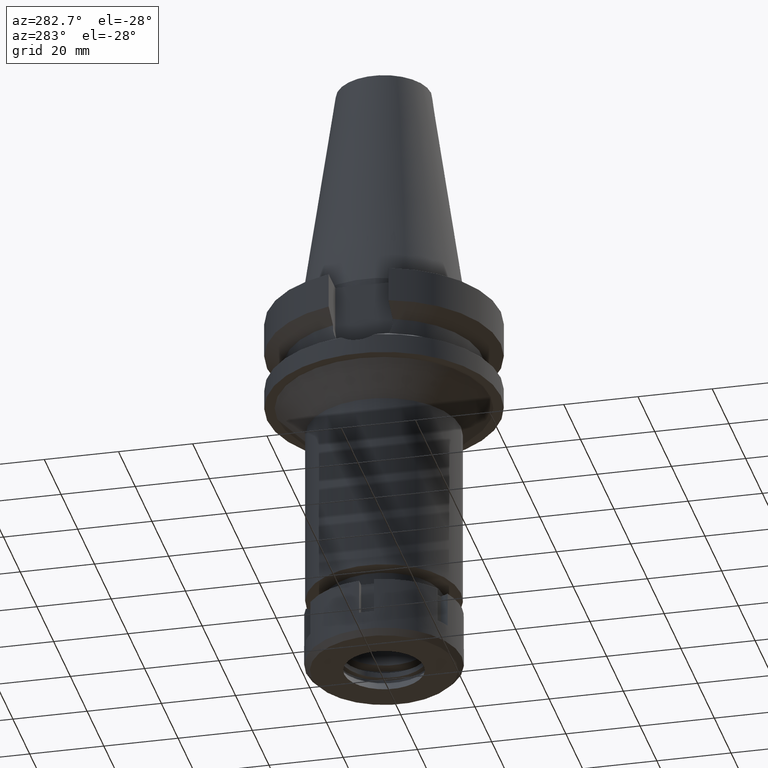
[diagram: clean part render]
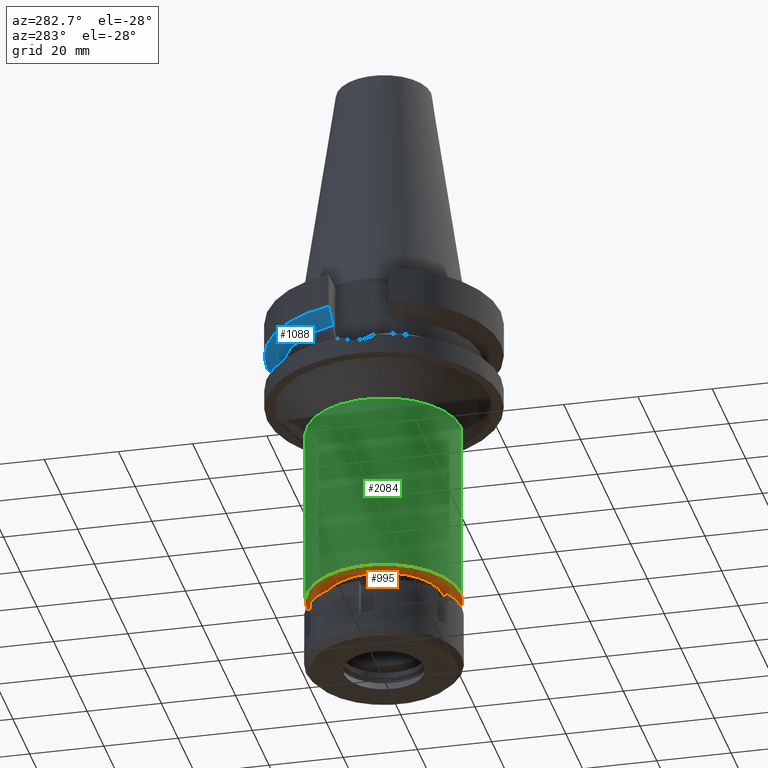
[diagram: same view with three faces highlighted in distinct colors, each labeled with its STEP entity id]
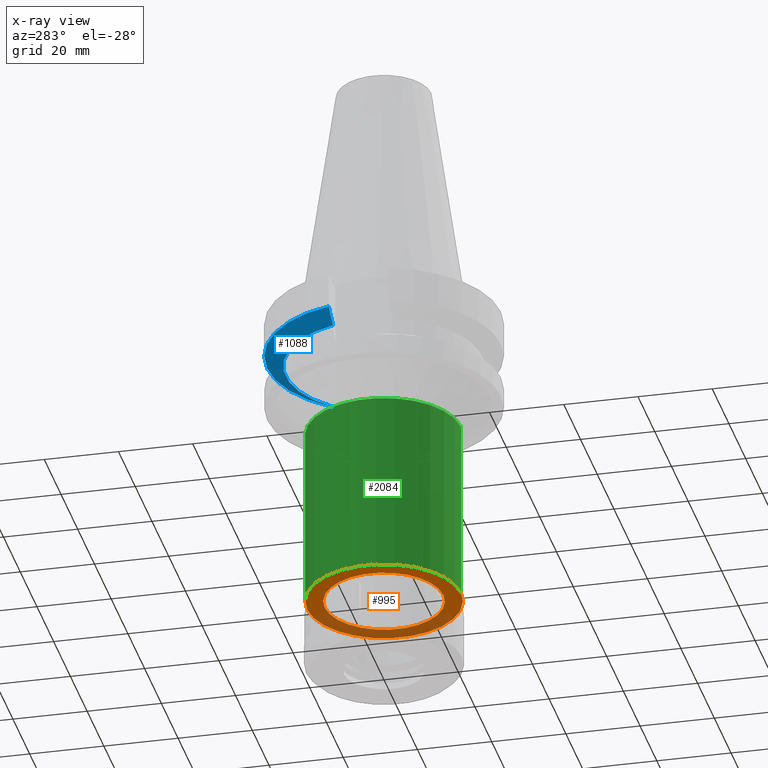
[diagram: x-ray of the same camera — body ghosted, the three highlighted faces saturated]
A machine part, auxiliary view with three faces highlighted in distinct colors.
The next image is the same camera in x-ray (body ghosted, the three faces saturated) — at least one of them is partly hidden behind the body in this view.
Their STEP definitions:

[orange] entity #995 — the highlighted planar face has unit normal (0, 0, -1).
#122 = DIRECTION ( 'NONE',  ( 0.0000000000000000000, 0.0000000000000000000, 1.000000000000000000 ) ) ;
#285 = CARTESIAN_POINT ( 'NONE',  ( 0.0000000000000000000, 2.125007125879999817E-14, -84.50000000000000000 ) ) ;
#357 = AXIS2_PLACEMENT_3D ( 'NONE', #2186, #2995, #3298 ) ;
#480 = CARTESIAN_POINT ( 'NONE',  ( 0.0000000000000000000, 2.125007125879999817E-14, -84.50000000000000000 ) ) ;
#492 = AXIS2_PLACEMENT_3D ( 'NONE', #3011, #3595, #2155 ) ;
#528 = CARTESIAN_POINT ( 'NONE',  ( 0.0000000000000000000, -20.75000000000000000, -84.50000000000000000 ) ) ;
#584 = CARTESIAN_POINT ( 'NONE',  ( 0.0000000000000000000, -16.00000000000000000, -84.50000000000000000 ) ) ;
#592 = CARTESIAN_POINT ( 'NONE',  ( 0.0000000000000000000, 16.00000000000000000, -84.50000000000000000 ) ) ;
#798 = DIRECTION ( 'NONE',  ( 0.0000000000000000000, -1.000000000000000000, 0.0000000000000000000 ) ) ;
#814 = EDGE_CURVE ( 'NONE', #3417, #3115, #997, .T. ) ;
#995 = ADVANCED_FACE ( 'NONE', ( #1064, #3001 ), #3034, .T. ) ;
#997 = CIRCLE ( 'NONE', #1768, 20.75000000000000000 ) ;
#1064 = FACE_OUTER_BOUND ( 'NONE', #1342, .T. ) ;
#1092 = VERTEX_POINT ( 'NONE', #592 ) ;
#1150 = ORIENTED_EDGE ( 'NONE', *, *, #3102, .F. ) ;
#1157 = DIRECTION ( 'NONE',  ( 0.0000000000000000000, 0.0000000000000000000, -1.000000000000000000 ) ) ;
#1172 = DIRECTION ( 'NONE',  ( 0.0000000000000000000, -1.000000000000000000, 0.0000000000000000000 ) ) ;
#1342 = EDGE_LOOP ( 'NONE', ( #1557, #1150 ) ) ;
#1414 = CARTESIAN_POINT ( 'NONE',  ( 0.0000000000000000000, 20.75000000000000000, -84.50000000000000000 ) ) ;
#1557 = ORIENTED_EDGE ( 'NONE', *, *, #814, .F. ) ;
#1650 = AXIS2_PLACEMENT_3D ( 'NONE', #1694, #2790, #798 ) ;
#1694 = CARTESIAN_POINT ( 'NONE',  ( 0.0000000000000000000, 0.0000000000000000000, -84.50000000000000000 ) ) ;
#1768 = AXIS2_PLACEMENT_3D ( 'NONE', #480, #122, #3506 ) ;
#1878 = EDGE_CURVE ( 'NONE', #1092, #2005, #2923, .T. ) ;
#2005 = VERTEX_POINT ( 'NONE', #584 ) ;
#2073 = AXIS2_PLACEMENT_3D ( 'NONE', #285, #1157, #1172 ) ;
#2155 = DIRECTION ( 'NONE',  ( 0.0000000000000000000, -1.000000000000000000, 0.0000000000000000000 ) ) ;
#2186 = CARTESIAN_POINT ( 'NONE',  ( 0.0000000000000000000, 2.125007125879999817E-14, -84.50000000000000000 ) ) ;
#2342 = EDGE_LOOP ( 'NONE', ( #2733, #2803 ) ) ;
#2530 = CIRCLE ( 'NONE', #492, 20.75000000000000000 ) ;
#2733 = ORIENTED_EDGE ( 'NONE', *, *, #1878, .F. ) ;
#2790 = DIRECTION ( 'NONE',  ( 0.0000000000000000000, 0.0000000000000000000, -1.000000000000000000 ) ) ;
#2803 = ORIENTED_EDGE ( 'NONE', *, *, #3395, .F. ) ;
#2923 = CIRCLE ( 'NONE', #357, 16.00000000000000000 ) ;
#2995 = DIRECTION ( 'NONE',  ( 0.0000000000000000000, 0.0000000000000000000, -1.000000000000000000 ) ) ;
#3001 = FACE_BOUND ( 'NONE', #2342, .T. ) ;
#3011 = CARTESIAN_POINT ( 'NONE',  ( 0.0000000000000000000, 2.125007125879999817E-14, -84.50000000000000000 ) ) ;
#3034 = PLANE ( 'NONE',  #1650 ) ;
#3102 = EDGE_CURVE ( 'NONE', #3115, #3417, #2530, .T. ) ;
#3115 = VERTEX_POINT ( 'NONE', #528 ) ;
#3298 = DIRECTION ( 'NONE',  ( 0.0000000000000000000, 1.000000000000000000, 0.0000000000000000000 ) ) ;
#3368 = CIRCLE ( 'NONE', #2073, 16.00000000000000000 ) ;
#3395 = EDGE_CURVE ( 'NONE', #2005, #1092, #3368, .T. ) ;
#3417 = VERTEX_POINT ( 'NONE', #1414 ) ;
#3506 = DIRECTION ( 'NONE',  ( 0.0000000000000000000, 1.000000000000000000, 0.0000000000000000000 ) ) ;
#3595 = DIRECTION ( 'NONE',  ( 0.0000000000000000000, 0.0000000000000000000, 1.000000000000000000 ) ) ;

[blue] entity #1088 — the highlighted conical surface has half-angle 60 deg.
#102 = EDGE_CURVE ( 'NONE', #1910, #1840, #2336, .T. ) ;
#169 = DIRECTION ( 'NONE',  ( 0.0000000000000000000, 0.0000000000000000000, -1.000000000000000000 ) ) ;
#464 = CARTESIAN_POINT ( 'NONE',  ( -30.45402162723999595, 8.050004144570001685, -11.56546832014999993 ) ) ;
#625 = VERTEX_POINT ( 'NONE', #2541 ) ;
#992 = B_SPLINE_CURVE_WITH_KNOTS ( 'NONE', 3,
 ( #1259, #3232, #2408, #3492 ),
 .UNSPECIFIED., .F., .F.,
 ( 4, 4 ),
 ( 0.0000000000000000000, 1.000000000000000000 ),
 .UNSPECIFIED. ) ;
#1088 = ADVANCED_FACE ( 'NONE', ( #1751 ), #2344, .T. ) ;
#1143 = DIRECTION ( 'NONE',  ( 0.0000000000000000000, 0.0000000000000000000, 1.000000000000000000 ) ) ;
#1193 = CARTESIAN_POINT ( 'NONE',  ( -25.24772216412999981, 8.050001585282000605, -14.45224488565999899 ) ) ;
#1215 = CARTESIAN_POINT ( 'NONE',  ( -28.57295868532880689, 8.050008284103759237, -12.61547481907413371 ) ) ;
#1232 = B_SPLINE_CURVE_WITH_KNOTS ( 'NONE', 3,
 ( #1193, #2264, #1215, #2568 ),
 .UNSPECIFIED., .F., .F.,
 ( 4, 4 ),
 ( 0.0000000000000000000, 1.000000000000000000 ),
 .UNSPECIFIED. ) ;
#1259 = CARTESIAN_POINT ( 'NONE',  ( 30.45402291382999849, 8.049999277277001042, -11.56551216207999921 ) ) ;
#1563 = EDGE_CURVE ( 'NONE', #1910, #2465, #1232, .T. ) ;
#1751 = FACE_OUTER_BOUND ( 'NONE', #2622, .T. ) ;
#1774 = ORIENTED_EDGE ( 'NONE', *, *, #2220, .F. ) ;
#1800 = CARTESIAN_POINT ( 'NONE',  ( 0.0000000000000000000, 1.065333950388000029E-14, -11.56550565266999975 ) ) ;
#1840 = VERTEX_POINT ( 'NONE', #2694 ) ;
#1865 = DIRECTION ( 'NONE',  ( -0.9527442516822307583, 0.3037735849057093818, 0.0000000000000000000 ) ) ;
#1889 = CARTESIAN_POINT ( 'NONE',  ( -25.24772216412999981, 8.050001585282000605, -14.45224488565999899 ) ) ;
#1910 = VERTEX_POINT ( 'NONE', #1889 ) ;
#2220 = EDGE_CURVE ( 'NONE', #625, #2465, #3228, .T. ) ;
#2264 = CARTESIAN_POINT ( 'NONE',  ( -26.83758145285739971, 8.050003173988077521, -13.57772736935359426 ) ) ;
#2336 = CIRCLE ( 'NONE', #3223, 26.50000000000000711 ) ;
#2344 = CONICAL_SURFACE ( 'NONE', #2450, 29.00000000000000000, 1.047197551196400456 ) ;
#2408 = CARTESIAN_POINT ( 'NONE',  ( 26.83754615080338368, 8.049990819218811211, -13.57774888653237255 ) ) ;
#2450 = AXIS2_PLACEMENT_3D ( 'NONE', #3166, #1143, #2852 ) ;
#2465 = VERTEX_POINT ( 'NONE', #464 ) ;
#2541 = CARTESIAN_POINT ( 'NONE',  ( 30.45402291382999849, 8.049999277277001042, -11.56551216207999921 ) ) ;
#2568 = CARTESIAN_POINT ( 'NONE',  ( -30.45402162723999595, 8.050004144570001685, -11.56546832014999993 ) ) ;
#2622 = EDGE_LOOP ( 'NONE', ( #1774, #3528, #3129, #3470 ) ) ;
#2694 = CARTESIAN_POINT ( 'NONE',  ( 25.24772413156000184, 8.049995414687000306, -14.45229203637999937 ) ) ;
#2740 = AXIS2_PLACEMENT_3D ( 'NONE', #1800, #3448, #2901 ) ;
#2852 = DIRECTION ( 'NONE',  ( 0.0000000000000000000, 1.000000000000000000, 0.0000000000000000000 ) ) ;
#2873 = EDGE_CURVE ( 'NONE', #625, #1840, #992, .T. ) ;
#2901 = DIRECTION ( 'NONE',  ( 0.0000000000000000000, 1.000000000000000000, 0.0000000000000000000 ) ) ;
#2938 = CARTESIAN_POINT ( 'NONE',  ( 0.0000000000000000000, 1.065333950388000029E-14, -14.45225699861000024 ) ) ;
#3129 = ORIENTED_EDGE ( 'NONE', *, *, #102, .F. ) ;
#3166 = CARTESIAN_POINT ( 'NONE',  ( 0.0000000000000000000, 1.065333950388000029E-14, -13.00888132564000088 ) ) ;
#3223 = AXIS2_PLACEMENT_3D ( 'NONE', #2938, #169, #1865 ) ;
#3228 = CIRCLE ( 'NONE', #2740, 31.50000000000000000 ) ;
#3232 = CARTESIAN_POINT ( 'NONE',  ( 28.57292328149092597, 8.049998555497538177, -12.61549606051901762 ) ) ;
#3448 = DIRECTION ( 'NONE',  ( 0.0000000000000000000, 0.0000000000000000000, 1.000000000000000000 ) ) ;
#3470 = ORIENTED_EDGE ( 'NONE', *, *, #1563, .T. ) ;
#3492 = CARTESIAN_POINT ( 'NONE',  ( 25.24772413156000184, 8.049995414687000306, -14.45229203637999937 ) ) ;
#3528 = ORIENTED_EDGE ( 'NONE', *, *, #2873, .T. ) ;

[green] entity #2084 — the highlighted cylindrical surface (partial cylindrical patch) has radius 20.75 mm, axis along (0, 0, -1).
#109 = CIRCLE ( 'NONE', #3405, 20.75000000000000000 ) ;
#122 = DIRECTION ( 'NONE',  ( 0.0000000000000000000, 0.0000000000000000000, 1.000000000000000000 ) ) ;
#160 = VECTOR ( 'NONE', #567, 1000.000000000000000 ) ;
#261 = ORIENTED_EDGE ( 'NONE', *, *, #1581, .F. ) ;
#456 = ORIENTED_EDGE ( 'NONE', *, *, #814, .T. ) ;
#480 = CARTESIAN_POINT ( 'NONE',  ( 0.0000000000000000000, 2.125007125879999817E-14, -84.50000000000000000 ) ) ;
#528 = CARTESIAN_POINT ( 'NONE',  ( 0.0000000000000000000, -20.75000000000000000, -84.50000000000000000 ) ) ;
#553 = CARTESIAN_POINT ( 'NONE',  ( 0.0000000000000000000, -20.75000000000000000, -35.00000000000000000 ) ) ;
#567 = DIRECTION ( 'NONE',  ( 0.0000000000000000000, 0.0000000000000000000, -1.000000000000000000 ) ) ;
#604 = DIRECTION ( 'NONE',  ( 0.0000000000000000000, -1.000000000000000000, 0.0000000000000000000 ) ) ;
#732 = EDGE_CURVE ( 'NONE', #3163, #1400, #109, .T. ) ;
#814 = EDGE_CURVE ( 'NONE', #3417, #3115, #997, .T. ) ;
#932 = LINE ( 'NONE', #1763, #1773 ) ;
#997 = CIRCLE ( 'NONE', #1768, 20.75000000000000000 ) ;
#1166 = CARTESIAN_POINT ( 'NONE',  ( 0.0000000000000000000, 2.125007125879999817E-14, 73.51999999999999602 ) ) ;
#1400 = VERTEX_POINT ( 'NONE', #3575 ) ;
#1414 = CARTESIAN_POINT ( 'NONE',  ( 0.0000000000000000000, 20.75000000000000000, -84.50000000000000000 ) ) ;
#1431 = FACE_OUTER_BOUND ( 'NONE', #1494, .T. ) ;
#1494 = EDGE_LOOP ( 'NONE', ( #456, #261, #3046, #3320 ) ) ;
#1581 = EDGE_CURVE ( 'NONE', #3163, #3115, #932, .T. ) ;
#1583 = DIRECTION ( 'NONE',  ( 0.0000000000000000000, -1.000000000000000000, 0.0000000000000000000 ) ) ;
#1763 = CARTESIAN_POINT ( 'NONE',  ( 0.0000000000000000000, -20.75000000000000000, -35.00000000000000000 ) ) ;
#1768 = AXIS2_PLACEMENT_3D ( 'NONE', #480, #122, #3506 ) ;
#1773 = VECTOR ( 'NONE', #3647, 1000.000000000000000 ) ;
#1998 = DIRECTION ( 'NONE',  ( 0.0000000000000000000, 0.0000000000000000000, -1.000000000000000000 ) ) ;
#2011 = EDGE_CURVE ( 'NONE', #1400, #3417, #2807, .T. ) ;
#2084 = ADVANCED_FACE ( 'NONE', ( #1431 ), #2528, .T. ) ;
#2366 = DIRECTION ( 'NONE',  ( 0.0000000000000000000, 0.0000000000000000000, -1.000000000000000000 ) ) ;
#2528 = CYLINDRICAL_SURFACE ( 'NONE', #3109, 20.75000000000000000 ) ;
#2582 = CARTESIAN_POINT ( 'NONE',  ( 0.0000000000000000000, 20.75000000000000000, -35.00000000000000000 ) ) ;
#2807 = LINE ( 'NONE', #2582, #160 ) ;
#2937 = CARTESIAN_POINT ( 'NONE',  ( 0.0000000000000000000, 0.0000000000000000000, -35.00000000000000000 ) ) ;
#3046 = ORIENTED_EDGE ( 'NONE', *, *, #732, .T. ) ;
#3109 = AXIS2_PLACEMENT_3D ( 'NONE', #1166, #1998, #604 ) ;
#3115 = VERTEX_POINT ( 'NONE', #528 ) ;
#3163 = VERTEX_POINT ( 'NONE', #553 ) ;
#3320 = ORIENTED_EDGE ( 'NONE', *, *, #2011, .T. ) ;
#3405 = AXIS2_PLACEMENT_3D ( 'NONE', #2937, #2366, #1583 ) ;
#3417 = VERTEX_POINT ( 'NONE', #1414 ) ;
#3506 = DIRECTION ( 'NONE',  ( 0.0000000000000000000, 1.000000000000000000, 0.0000000000000000000 ) ) ;
#3575 = CARTESIAN_POINT ( 'NONE',  ( 0.0000000000000000000, 20.75000000000000000, -35.00000000000000000 ) ) ;
#3647 = DIRECTION ( 'NONE',  ( 0.0000000000000000000, 0.0000000000000000000, -1.000000000000000000 ) ) ;